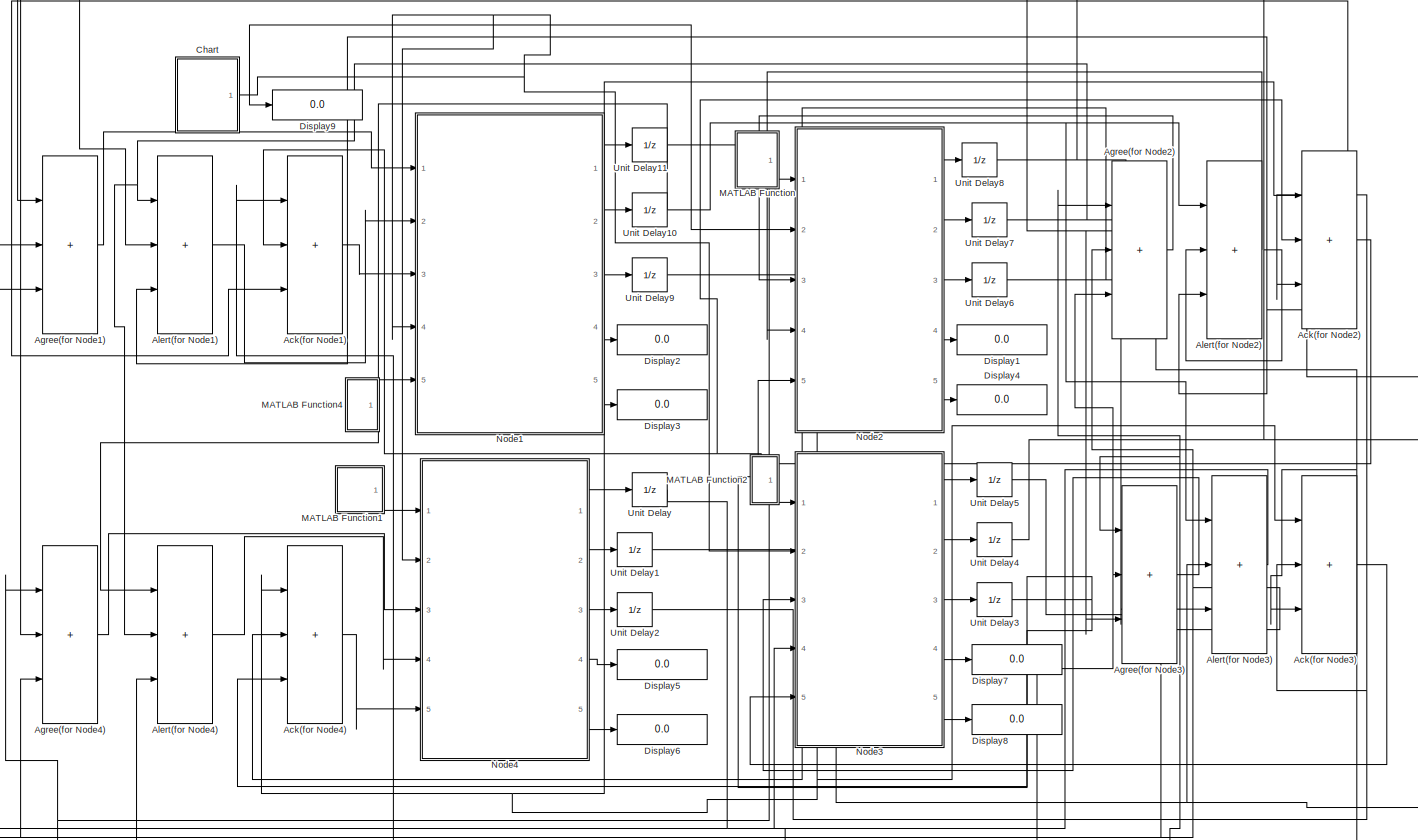
[diagram: root canvas - part 1/1, most of the canvas]
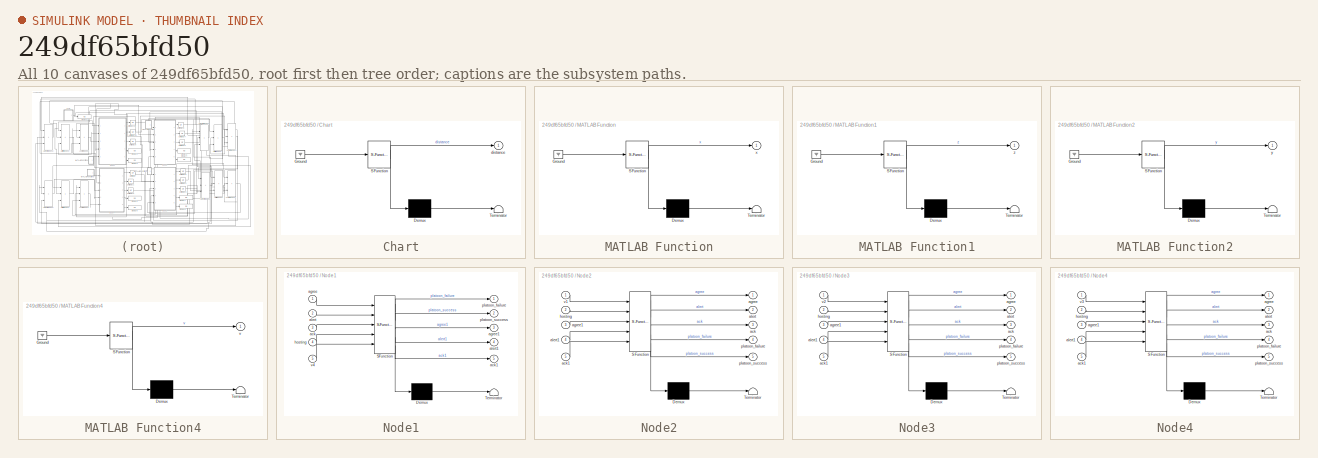
[diagram: thumbnail index - all 10 canvases of the model, root first then tree order]
MODEL slx_249df65bfd50
KIND model
CONFIG AbsTol = auto
CONFIG EnableMultiTasking = off
CONFIG FixedStep = auto
CONFIG MaxStep = auto
CONFIG MinStep = auto
CONFIG RelTol = 1e-3
CONFIG SampleTimeConstraint = Unconstrained
CONFIG SolverName = VariableStepAuto
CONFIG StartTime = 0.0
CONFIG StopTime = 10.0
BLOCK [Sum] Ack(for Node1)
  IconShape = rectangular
  Inputs = +++
  Ports = [3, 1]
BLOCK [Sum] Ack(for Node2)
  IconShape = rectangular
  Inputs = +++
  Ports = [3, 1]
BLOCK [Sum] Ack(for Node3)
  IconShape = rectangular
  Inputs = +++
  Ports = [3, 1]
BLOCK [Sum] Ack(for Node4)
  IconShape = rectangular
  Inputs = +++
  Ports = [3, 1]
BLOCK [Sum] Agree(for Node1)
  IconShape = rectangular
  Inputs = +++
  Ports = [3, 1]
BLOCK [Sum] Agree(for Node2)
  IconShape = rectangular
  Inputs = +++
  Ports = [3, 1]
BLOCK [Sum] Agree(for Node3)
  IconShape = rectangular
  Inputs = +++
  Ports = [3, 1]
BLOCK [Sum] Agree(for Node4)
  IconShape = rectangular
  Inputs = +++
  Ports = [3, 1]
BLOCK [Sum] Alert(for Node1)
  IconShape = rectangular
  Inputs = +++
  Ports = [3, 1]
BLOCK [Sum] Alert(for Node2)
  IconShape = rectangular
  Inputs = +++
  Ports = [3, 1]
BLOCK [Sum] Alert(for Node3)
  IconShape = rectangular
  Inputs = +++
  Ports = [3, 1]
BLOCK [Sum] Alert(for Node4)
  IconShape = rectangular
  Inputs = +++
  Ports = [3, 1]
BLOCK [SubSystem] Chart
  ErrorFcn = Stateflow.Translate.translate
  PermitHierarchicalResolution = ExplicitOnly
  Ports = [0, 1]
  RequestExecContextInheritance = off
  SFBlockType = Chart
  TreatAsAtomicUnit = on
BLOCK [Demux] Chart/ Demux 
  Outputs = 1
  Ports = [1, 1]
BLOCK [Ground] Chart/ Ground 
BLOCK [S-Function] Chart/ SFunction 
  EnableBusSupport = on
  FunctionName = sf_sfun
  PortCounts = [1 2]
  Ports = [1, 2]
  SFcnIsStateOwnerBlock = off
  SFunctionDeploymentMode = off
  Tag = Stateflow S-Function 10
BLOCK [Terminator] Chart/ Terminator 
BLOCK [Outport] Chart/distance
BLOCK [Display] Display1
  Decimation = 1
  Ports = [1]
BLOCK [Display] Display2
  Decimation = 1
  Ports = [1]
BLOCK [Display] Display3
  Decimation = 1
  Ports = [1]
BLOCK [Display] Display4
  Decimation = 1
  Ports = [1]
BLOCK [Display] Display5
  Decimation = 1
  Ports = [1]
BLOCK [Display] Display6
  Decimation = 1
  Ports = [1]
BLOCK [Display] Display7
  Decimation = 1
  Ports = [1]
BLOCK [Display] Display8
  Decimation = 1
  Ports = [1]
BLOCK [Display] Display9
  Decimation = 1
  Ports = [1]
BLOCK [SubSystem] MATLAB Function
  ErrorFcn = Stateflow.Translate.translate
  PermitHierarchicalResolution = ExplicitOnly
  Ports = [0, 1]
  RequestExecContextInheritance = off
  SFBlockType = MATLAB Function
  TreatAsAtomicUnit = on
BLOCK [Demux] MATLAB Function/ Demux 
  Outputs = 1
  Ports = [1, 1]
BLOCK [Ground] MATLAB Function/ Ground 
BLOCK [S-Function] MATLAB Function/ SFunction 
  EnableBusSupport = on
  FunctionName = sf_sfun
  PortCounts = [1 2]
  Ports = [1, 2]
  SFcnIsStateOwnerBlock = off
  SFunctionDeploymentMode = off
  Tag = Stateflow S-Function 5
BLOCK [Terminator] MATLAB Function/ Terminator 
BLOCK [Outport] MATLAB Function/x
BLOCK [SubSystem] MATLAB Function1
  ErrorFcn = Stateflow.Translate.translate
  PermitHierarchicalResolution = ExplicitOnly
  Ports = [0, 1]
  RequestExecContextInheritance = off
  SFBlockType = MATLAB Function
  TreatAsAtomicUnit = on
BLOCK [Demux] MATLAB Function1/ Demux 
  Outputs = 1
  Ports = [1, 1]
BLOCK [Ground] MATLAB Function1/ Ground 
BLOCK [S-Function] MATLAB Function1/ SFunction 
  EnableBusSupport = on
  FunctionName = sf_sfun
  PortCounts = [1 2]
  Ports = [1, 2]
  SFcnIsStateOwnerBlock = off
  SFunctionDeploymentMode = off
  Tag = Stateflow S-Function 6
BLOCK [Terminator] MATLAB Function1/ Terminator 
BLOCK [Outport] MATLAB Function1/z
BLOCK [SubSystem] MATLAB Function2
  ErrorFcn = Stateflow.Translate.translate
  PermitHierarchicalResolution = ExplicitOnly
  Ports = [0, 1]
  RequestExecContextInheritance = off
  SFBlockType = MATLAB Function
  TreatAsAtomicUnit = on
BLOCK [Demux] MATLAB Function2/ Demux 
  Outputs = 1
  Ports = [1, 1]
BLOCK [Ground] MATLAB Function2/ Ground 
BLOCK [S-Function] MATLAB Function2/ SFunction 
  EnableBusSupport = on
  FunctionName = sf_sfun
  PortCounts = [1 2]
  Ports = [1, 2]
  SFcnIsStateOwnerBlock = off
  SFunctionDeploymentMode = off
  Tag = Stateflow S-Function 7
BLOCK [Terminator] MATLAB Function2/ Terminator 
BLOCK [Outport] MATLAB Function2/y
BLOCK [SubSystem] MATLAB Function4
  ErrorFcn = Stateflow.Translate.translate
  PermitHierarchicalResolution = ExplicitOnly
  Ports = [0, 1]
  RequestExecContextInheritance = off
  SFBlockType = MATLAB Function
  TreatAsAtomicUnit = on
BLOCK [Demux] MATLAB Function4/ Demux 
  Outputs = 1
  Ports = [1, 1]
BLOCK [Ground] MATLAB Function4/ Ground 
BLOCK [S-Function] MATLAB Function4/ SFunction 
  EnableBusSupport = on
  FunctionName = sf_sfun
  PortCounts = [1 2]
  Ports = [1, 2]
  SFcnIsStateOwnerBlock = off
  SFunctionDeploymentMode = off
  Tag = Stateflow S-Function 9
BLOCK [Terminator] MATLAB Function4/ Terminator 
BLOCK [Outport] MATLAB Function4/v
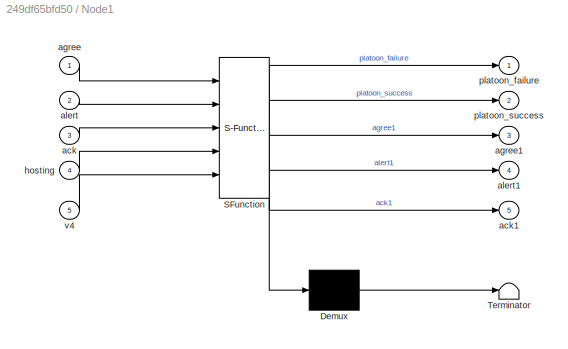
BLOCK [SubSystem] Node1
  ErrorFcn = Stateflow.Translate.translate
  PermitHierarchicalResolution = ExplicitOnly
  PortSchema = {"entries":[{"content":{"sides":[{"content":{"connectorIds":["In1","In2","In3","In4","In5"]},"type":"ConnectorPlacement.EquallySpacedRectSide","uuid":"734fbdd0-9501-4fb3-a80e-b93ab60da9cd"},{"content":{"connectorIds":["Out3","Out4","Out5","Out1","Out2"],"side":"RIGHT"},"type":"ConnectorPlacement.EquallySpacedRectSide","uuid":"5fc245a7-62da-4c1d-8651-4c21304ad71c"},{"content":{"connectorIds":[],"si...<+436ch>
  Ports = [5, 5]
  RequestExecContextInheritance = off
  SFBlockType = Chart
  TreatAsAtomicUnit = on
BLOCK [Demux] Node1/ Demux 
  Outputs = 1
  Ports = [1, 1]
BLOCK [S-Function] Node1/ SFunction 
  EnableBusSupport = on
  FunctionName = sf_sfun
  PortCounts = [5 6]
  Ports = [5, 6]
  SFcnIsStateOwnerBlock = off
  SFunctionDeploymentMode = off
  Tag = Stateflow S-Function 3
BLOCK [Terminator] Node1/ Terminator 
BLOCK [Inport] Node1/ack
  Port = 3
BLOCK [Outport] Node1/ack1
  Port = 5
BLOCK [Inport] Node1/agree
BLOCK [Outport] Node1/agree1
  Port = 3
BLOCK [Inport] Node1/alert
  Port = 2
BLOCK [Outport] Node1/alert1
  Port = 4
BLOCK [Inport] Node1/hosting
  Port = 4
BLOCK [Outport] Node1/platoon_failure
BLOCK [Outport] Node1/platoon_success
  Port = 2
BLOCK [Inport] Node1/v4
  Port = 5
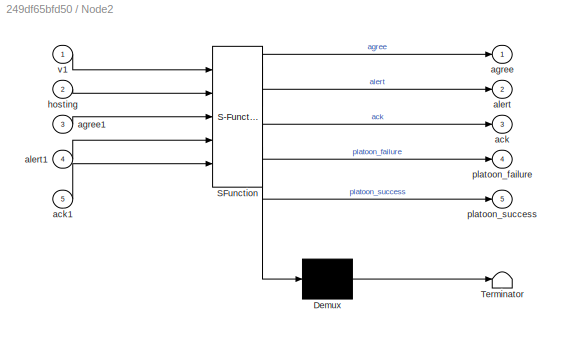
BLOCK [SubSystem] Node2
  ErrorFcn = Stateflow.Translate.translate
  PermitHierarchicalResolution = ExplicitOnly
  Ports = [5, 5]
  RequestExecContextInheritance = off
  SFBlockType = Chart
  TreatAsAtomicUnit = on
BLOCK [Demux] Node2/ Demux 
  Outputs = 1
  Ports = [1, 1]
BLOCK [S-Function] Node2/ SFunction 
  EnableBusSupport = on
  FunctionName = sf_sfun
  PortCounts = [5 6]
  Ports = [5, 6]
  SFcnIsStateOwnerBlock = off
  SFunctionDeploymentMode = off
  Tag = Stateflow S-Function 4
BLOCK [Terminator] Node2/ Terminator 
BLOCK [Outport] Node2/ack
  Port = 3
BLOCK [Inport] Node2/ack1
  Port = 5
BLOCK [Outport] Node2/agree
BLOCK [Inport] Node2/agree1
  Port = 3
BLOCK [Outport] Node2/alert
  Port = 2
BLOCK [Inport] Node2/alert1
  Port = 4
BLOCK [Inport] Node2/hosting
  Port = 2
BLOCK [Outport] Node2/platoon_failure
  Port = 4
BLOCK [Outport] Node2/platoon_success
  Port = 5
BLOCK [Inport] Node2/v1
BLOCK [SubSystem] Node3
  ErrorFcn = Stateflow.Translate.translate
  PermitHierarchicalResolution = ExplicitOnly
  Ports = [5, 5]
  RequestExecContextInheritance = off
  SFBlockType = Chart
  TreatAsAtomicUnit = on
BLOCK [Demux] Node3/ Demux 
  Outputs = 1
  Ports = [1, 1]
BLOCK [S-Function] Node3/ SFunction 
  EnableBusSupport = on
  FunctionName = sf_sfun
  PortCounts = [5 6]
  Ports = [5, 6]
  SFcnIsStateOwnerBlock = off
  SFunctionDeploymentMode = off
  Tag = Stateflow S-Function 1
BLOCK [Terminator] Node3/ Terminator 
BLOCK [Outport] Node3/ack
  Port = 3
BLOCK [Inport] Node3/ack1
  Port = 5
BLOCK [Outport] Node3/agree
BLOCK [Inport] Node3/agree1
  Port = 3
BLOCK [Outport] Node3/alert
  Port = 2
BLOCK [Inport] Node3/alert1
  Port = 4
BLOCK [Inport] Node3/hosting
  Port = 2
BLOCK [Outport] Node3/platoon_failure
  Port = 4
BLOCK [Outport] Node3/platoon_success
  Port = 5
BLOCK [Inport] Node3/v2
BLOCK [SubSystem] Node4
  ErrorFcn = Stateflow.Translate.translate
  PermitHierarchicalResolution = ExplicitOnly
  Ports = [5, 5]
  RequestExecContextInheritance = off
  SFBlockType = Chart
  TreatAsAtomicUnit = on
BLOCK [Demux] Node4/ Demux 
  Outputs = 1
  Ports = [1, 1]
BLOCK [S-Function] Node4/ SFunction 
  EnableBusSupport = on
  FunctionName = sf_sfun
  PortCounts = [5 6]
  Ports = [5, 6]
  SFcnIsStateOwnerBlock = off
  SFunctionDeploymentMode = off
  Tag = Stateflow S-Function 2
BLOCK [Terminator] Node4/ Terminator 
BLOCK [Outport] Node4/ack
  Port = 3
BLOCK [Inport] Node4/ack1
  Port = 5
BLOCK [Outport] Node4/agree
BLOCK [Inport] Node4/agree1
  Port = 3
BLOCK [Outport] Node4/alert
  Port = 2
BLOCK [Inport] Node4/alert1
  Port = 4
BLOCK [Inport] Node4/hosting
  Port = 2
BLOCK [Outport] Node4/platoon_failure
  Port = 4
BLOCK [Outport] Node4/platoon_success
  Port = 5
BLOCK [Inport] Node4/v3
BLOCK [UnitDelay] Unit Delay
  HasFrameUpgradeWarning = on
  SampleTime = -1
BLOCK [UnitDelay] Unit Delay1
  HasFrameUpgradeWarning = on
  SampleTime = -1
BLOCK [UnitDelay] Unit Delay10
  HasFrameUpgradeWarning = on
  SampleTime = -1
BLOCK [UnitDelay] Unit Delay11
  HasFrameUpgradeWarning = on
  SampleTime = -1
BLOCK [UnitDelay] Unit Delay2
  HasFrameUpgradeWarning = on
  SampleTime = -1
BLOCK [UnitDelay] Unit Delay3
  HasFrameUpgradeWarning = on
  SampleTime = -1
BLOCK [UnitDelay] Unit Delay4
  HasFrameUpgradeWarning = on
  SampleTime = -1
BLOCK [UnitDelay] Unit Delay5
  HasFrameUpgradeWarning = on
  SampleTime = -1
BLOCK [UnitDelay] Unit Delay6
  HasFrameUpgradeWarning = on
  SampleTime = -1
BLOCK [UnitDelay] Unit Delay7
  HasFrameUpgradeWarning = on
  SampleTime = -1
BLOCK [UnitDelay] Unit Delay8
  HasFrameUpgradeWarning = on
  SampleTime = -1
BLOCK [UnitDelay] Unit Delay9
  HasFrameUpgradeWarning = on
  SampleTime = -1
LINE Ack(for Node1):1 -> Node1:3
LINE Ack(for Node2):1 -> Node2:5
LINE Ack(for Node3):1 -> Node3:5
LINE Ack(for Node4):1 -> Node4:5
LINE Agree(for Node1):1 -> Node1:1
LINE Agree(for Node2):1 -> Node2:3
LINE Agree(for Node3):1 -> Node3:3
LINE Agree(for Node4):1 -> Node4:3
LINE Alert(for Node1):1 -> Node1:2
LINE Alert(for Node2):1 -> Node2:4
LINE Alert(for Node3):1 -> Node3:4
LINE Alert(for Node4):1 -> Node4:4
NET Chart:1 -> Display9:1, Node1:4, Node2:2, Node3:2, Node4:2
LINE MATLAB Function1:1 -> Node4:1
LINE MATLAB Function2:1 -> Node3:1
LINE MATLAB Function4:1 -> Node1:5
LINE MATLAB Function:1 -> Node2:1
LINE Node1:1 -> Display2:1
LINE Node1:2 -> Display3:1
LINE Node1:3 -> Unit Delay11:1
LINE Node1:4 -> Unit Delay10:1
LINE Node1:5 -> Unit Delay9:1
LINE Node2:1 -> Unit Delay8:1
LINE Node2:2 -> Unit Delay7:1
LINE Node2:3 -> Unit Delay6:1
LINE Node2:4 -> Display1:1
LINE Node2:5 -> Display4:1
LINE Node3:1 -> Unit Delay5:1
LINE Node3:2 -> Unit Delay4:1
LINE Node3:3 -> Unit Delay3:1
LINE Node3:4 -> Display7:1
LINE Node3:5 -> Display8:1
LINE Node4:1 -> Unit Delay:1
LINE Node4:2 -> Unit Delay1:1
LINE Node4:3 -> Unit Delay2:1
LINE Node4:4 -> Display5:1
LINE Node4:5 -> Display6:1
NET Unit Delay10:1 -> Alert(for Node2):1, Alert(for Node3):1, Alert(for Node4):1
NET Unit Delay11:1 -> Agree(for Node2):1, Agree(for Node3):1, Agree(for Node4):1
NET Unit Delay1:1 -> Alert(for Node1):3, Alert(for Node2):3, Alert(for Node3):2
NET Unit Delay2:1 -> Ack(for Node1):3, Ack(for Node2):3, Ack(for Node3):2
NET Unit Delay3:1 -> Ack(for Node1):2, Ack(for Node2):2, Ack(for Node4):3
NET Unit Delay4:1 -> Alert(for Node1):2, Alert(for Node2):2, Alert(for Node4):3
NET Unit Delay5:1 -> Agree(for Node1):2, Agree(for Node2):2, Agree(for Node4):3
NET Unit Delay6:1 -> Ack(for Node1):1, Ack(for Node3):3, Ack(for Node4):2
NET Unit Delay7:1 -> Alert(for Node1):1, Alert(for Node3):3, Alert(for Node4):2
NET Unit Delay8:1 -> Agree(for Node1):1, Agree(for Node3):3, Agree(for Node4):2
NET Unit Delay9:1 -> Ack(for Node2):1, Ack(for Node3):1, Ack(for Node4):1
NET Unit Delay:1 -> Agree(for Node1):3, Agree(for Node2):3, Agree(for Node3):2
note: NET lines group one-source signal fan-out (src -> all destinations, sorted); 1:1 wires keep LINE
CHART Node3 states=35 transitions=51
  STATE_LABEL 'Agend'
  STATE_LABEL 'Inactive'
  STATE_LABEL 'Ready\nentry:\nagree = 1;'
  STATE_LABEL 'Init\nentry:\ndead = false;'
  STATE_LABEL 'Wait'
  STATE_LABEL '[dead == false]'
  STATE_LABEL 'Active'
  STATE_LABEL 'Platoon\nentry:\nplatoon_function();'
  STATE_LABEL 'platoon_function'
  STATE_LABEL '[v2 > 50]'
  STATE_LABEL '{alert = 1;}'
  STATE_LABEL '{ack = 1;}'
  STATE_LABEL 'Inactive'
  STATE_LABEL 'Ready\nentry:\nagree = 1;'
  STATE_LABEL 'Init\nentry:\ndead = false;'
  STATE_LABEL 'Wait'
  STATE_LABEL '[dead == false]'
  STATE_LABEL 'Ready\nentry:\nagree = 1;'
  STATE_LABEL 'Init\nentry:\ndead = false;'
  STATE_LABEL 'Wait'
  STATE_LABEL 'Active'
  STATE_LABEL 'Platoon\nentry:\nplatoon_function();'
  STATE_LABEL 'platoon_function'
  STATE_LABEL '[v2 > 50]'
  STATE_LABEL '{alert = 1;}'
  STATE_LABEL '{ack = 1;}'
  STATE_LABEL 'Platoon\nentry:\nplatoon_function();'
  STATE_LABEL 'platoon_function'
  STATE_LABEL '[v2 > 50]'
  STATE_LABEL '{alert = 1;}'
  STATE_LABEL '{ack = 1;}'
  STATE_LABEL 'Host'
  STATE_LABEL 'Init\nentry:\nplatoon_success=0;\nplatoon_failure=0;'
  STATE_LABEL 'Commit\nentry:\n'
  STATE_LABEL 'PTC'
  STATE_LABEL 'Success\nentry:\nplatoon_failure = alert1;\nplatoon_success = ack1;'
  STATE_LABEL 'Fail\nentry:\nplatoon_failure = alert1;\nplatoon_success = ack1;'
  STATE_LABEL '[agree1 >= 2]'
  STATE_LABEL '[ack1 >= 2]'
  STATE_LABEL '[alert1 >= 2]'
CHART Node4 states=35 transitions=51
  STATE_LABEL 'Host'
  STATE_LABEL 'Init\nentry:\nplatoon_success=0;\nplatoon_failure=0;'
  STATE_LABEL 'Commit\n'
  STATE_LABEL 'PTC'
  STATE_LABEL 'Success\nentry:\nplatoon_failure = alert1;\nplatoon_success = ack1;'
  STATE_LABEL 'Fail\nentry:\nplatoon_failure = alert1;\nplatoon_success = ack1;'
  STATE_LABEL '[agree1 >= 2]'
  STATE_LABEL '[alert1 >= 2]'
  STATE_LABEL '[ack1 >= 2]'
  STATE_LABEL 'Init\nentry:\nplatoon_success=0;\nplatoon_failure=0;'
  STATE_LABEL 'Commit\n'
  STATE_LABEL 'PTC'
  STATE_LABEL 'Success\nentry:\nplatoon_failure = alert1;\nplatoon_success = ack1;'
  STATE_LABEL 'Fail\nentry:\nplatoon_failure = alert1;\nplatoon_success = ack1;'
  STATE_LABEL 'Agend'
  STATE_LABEL 'Inactive'
  STATE_LABEL 'Ready\nentry:\nagree = 1;\n'
  STATE_LABEL 'Init\nentry:\ndead = false;'
  STATE_LABEL 'Wait'
  STATE_LABEL '[dead == false]'
  STATE_LABEL 'Active'
  STATE_LABEL 'Platoon\nentry:\nplatoon_function();'
  STATE_LABEL 'platoon_function'
  STATE_LABEL '[v3 > 50]'
  STATE_LABEL '{alert = 1;}'
  STATE_LABEL '{ack = 1;}'
  STATE_LABEL 'Inactive'
  STATE_LABEL 'Ready\nentry:\nagree = 1;\n'
  STATE_LABEL 'Init\nentry:\ndead = false;'
  STATE_LABEL 'Wait'
  STATE_LABEL '[dead == false]'
  STATE_LABEL 'Ready\nentry:\nagree = 1;\n'
  STATE_LABEL 'Init\nentry:\ndead = false;'
  STATE_LABEL 'Wait'
  STATE_LABEL 'Active'
  STATE_LABEL 'Platoon\nentry:\nplatoon_function();'
  STATE_LABEL 'platoon_function'
  STATE_LABEL '[v3 > 50]'
  STATE_LABEL '{alert = 1;}'
  STATE_LABEL '{ack = 1;}'
CHART Node1 states=35 transitions=51
  STATE_LABEL 'agend'
  STATE_LABEL 'Inactive'
  STATE_LABEL 'Ready\nentry:\nagree1 = 1;'
  STATE_LABEL 'Init\nentry:\ndead = false;'
  STATE_LABEL 'Wait'
  STATE_LABEL '[dead == false]'
  STATE_LABEL 'Active'
  STATE_LABEL 'Platoon\nentry:\nplatoon_function();'
  STATE_LABEL 'platoon_function'
  STATE_LABEL '[v4 > 50]'
  STATE_LABEL '{alert1 = 1;}'
  STATE_LABEL '{ack1 = 1;}'
  STATE_LABEL 'Inactive'
  STATE_LABEL 'Ready\nentry:\nagree1 = 1;'
  STATE_LABEL 'Init\nentry:\ndead = false;'
  STATE_LABEL 'Wait'
  STATE_LABEL '[dead == false]'
  STATE_LABEL 'Ready\nentry:\nagree1 = 1;'
  STATE_LABEL 'Init\nentry:\ndead = false;'
  STATE_LABEL 'Wait'
  STATE_LABEL 'Active'
  STATE_LABEL 'Platoon\nentry:\nplatoon_function();'
  STATE_LABEL 'platoon_function'
  STATE_LABEL '[v4 > 50]'
  STATE_LABEL '{alert1 = 1;}'
  STATE_LABEL '{ack1 = 1;}'
  STATE_LABEL 'Platoon\nentry:\nplatoon_function();'
  STATE_LABEL 'platoon_function'
  STATE_LABEL '[v4 > 50]'
  STATE_LABEL '{alert1 = 1;}'
  STATE_LABEL '{ack1 = 1;}'
  STATE_LABEL 'Host'
  STATE_LABEL 'Init\nentry:\nplatoon_success=0;\nplatoon_failure=0;'
  STATE_LABEL 'Commit\n\n'
  STATE_LABEL 'PTC\n\n'
  STATE_LABEL 'Success\nentry:\nplatoon_success = ack;\nplatoon_failure = alert;'
  STATE_LABEL 'Fail\nentry:\nplatoon_success = ack;\nplatoon_failure = alert;'
  STATE_LABEL '[agree >= 2]'
  STATE_LABEL '[alert >= 2]'
  STATE_LABEL '[ack >= 2]'
CHART Node2 states=35 transitions=51
  STATE_LABEL 'Host'
  STATE_LABEL 'Init\nentry:\nplatoon_success=0;\nplatoon_failure=0;'
  STATE_LABEL 'Commit\n'
  STATE_LABEL 'PTC'
  STATE_LABEL 'Success\nentry:\nplatoon_failure = alert1;\nplatoon_success = ack1;'
  STATE_LABEL 'Fail\nentry:\nplatoon_failure = alert1;\nplatoon_success = ack1;'
  STATE_LABEL '[agree1 >= 2]'
  STATE_LABEL '[ack1 >= 2]'
  STATE_LABEL '[alert1 >= 2]'
  STATE_LABEL 'Init\nentry:\nplatoon_success=0;\nplatoon_failure=0;'
  STATE_LABEL 'Commit\n'
  STATE_LABEL 'PTC'
  STATE_LABEL 'Success\nentry:\nplatoon_failure = alert1;\nplatoon_success = ack1;'
  STATE_LABEL 'Fail\nentry:\nplatoon_failure = alert1;\nplatoon_success = ack1;'
  STATE_LABEL 'Agend'
  STATE_LABEL 'Inactive'
  STATE_LABEL 'Ready\nentry:\nagree = 1;'
  STATE_LABEL 'Init\nentry:\ndead = false;'
  STATE_LABEL 'Wait'
  STATE_LABEL '[dead == false]'
  STATE_LABEL 'Active'
  STATE_LABEL 'Platoon\nentry:\nplatoon_function();'
  STATE_LABEL 'platoon_function'
  STATE_LABEL '[v1 > 50]'
  STATE_LABEL '{alert = 1;}'
  STATE_LABEL '{ack = 1;}'
  STATE_LABEL 'Inactive'
  STATE_LABEL 'Ready\nentry:\nagree = 1;'
  STATE_LABEL 'Init\nentry:\ndead = false;'
  STATE_LABEL 'Wait'
  STATE_LABEL '[dead == false]'
  STATE_LABEL 'Ready\nentry:\nagree = 1;'
  STATE_LABEL 'Init\nentry:\ndead = false;'
  STATE_LABEL 'Wait'
  STATE_LABEL 'Active'
  STATE_LABEL 'Platoon\nentry:\nplatoon_function();'
  STATE_LABEL 'platoon_function'
  STATE_LABEL '[v1 > 50]'
  STATE_LABEL '{alert = 1;}'
  STATE_LABEL '{ack = 1;}'
CHART MATLAB Function states=1 transitions=1
  STATE_LABEL 'eML_blk_kernel()'
  STATE_LABEL "SCRIPT:\n\nfunction x = v1()\n\n% a = 30;\n% b= 100;\n% \n% x = round((a + (b-a) .* rand(1,1)));\n% \n% \n%  end\ncoder.extrinsic('rand','rng');\nx = 0;\n\npersistent atTime0\nif isempty(atTime0)\n    rng('shuffle');\n    atTime0 = false;\nend\n\nx = round(rand * 100);"
CHART MATLAB Function1 states=1 transitions=1
  STATE_LABEL 'eML_blk_kernel()'
  STATE_LABEL "SCRIPT:\nfunction z = v3()\n\n% a = 25;\n% b= 100;\n% \n% z = round((a + (b-a) .* rand(1,1)));\n% \n% end\n\ncoder.extrinsic('rand','rng');\nz = 0;\n\npersistent atTime0\nif isempty(atTime0)\n    rng('shuffle');\n    atTime0 = false;\nend\n\nz = round(rand * 100);\n"
CHART MATLAB Function2 states=1 transitions=1
  STATE_LABEL 'eML_blk_kernel()'
  STATE_LABEL "SCRIPT:\nfunction y = v2()\n\ncoder.extrinsic('rand','rng');\ny = 0;\n\npersistent atTime0\nif isempty(atTime0)\n    rng('shuffle');\n    atTime0 = false;\nend\n\ny = round(rand * 100);\n"
CHART MATLAB Function4 states=1 transitions=1
  STATE_LABEL 'eML_blk_kernel()'
  STATE_LABEL "SCRIPT:\nfunction v = v4()\n\ncoder.extrinsic('rand','rng');\nv = 0;\n\npersistent atTime0\nif isempty(atTime0)\n    rng('shuffle');\n    atTime0 = false;\nend\n\nv = round(rand * 100);\n"
CHART Chart states=3 transitions=15
  STATE_LABEL 'Hosting_output\nentry:\nv9();\ndistance = v9;\n'
  STATE_LABEL 'selct_host_name(out)'
  STATE_LABEL '% Select Host Name'
  STATE_LABEL '[out > 0 && out < 24]'
  STATE_LABEL '{Host = 1;}'
  STATE_LABEL '[out >= 25 && out <= 49]'
  STATE_LABEL '{Host = 2;}'
  STATE_LABEL '[out >= 50 && out <= 74]'
  STATE_LABEL '{Host = 4;}'
  STATE_LABEL '{Host = 3;}'
  STATE_LABEL 'x = v9'
  STATE_LABEL "SCRIPT:\nfunction x = v9()\n\n% a = 30;\n% b= 100;\n% \n% x = round((a + (b-a) .* rand(1,1)));\n% \n% \n%  end\ncoder.extrinsic('rand','rng');\nx = 0;\n\npersistent atTime0\nif isempty(atTime0)\n    rng('shuffle');\n    atTime0 = false;\nend\n\nx = round(rand * 100);\n \n"
  STATE_LABEL 'selct_host_name(out)'
  STATE_LABEL '% Select Host Name'
  STATE_LABEL '[out > 0 && out < 24]'
  STATE_LABEL '{Host = 1;}'
  STATE_LABEL '[out >= 25 && out <= 49]'
  STATE_LABEL '{Host = 2;}'
  STATE_LABEL '[out >= 50 && out <= 74]'
  STATE_LABEL '{Host = 4;}'
  STATE_LABEL '{Host = 3;}'
  STATE_LABEL 'x = v9'
  STATE_LABEL "SCRIPT:\nfunction x = v9()\n\n% a = 30;\n% b= 100;\n% \n% x = round((a + (b-a) .* rand(1,1)));\n% \n% \n%  end\ncoder.extrinsic('rand','rng');\nx = 0;\n\npersistent atTime0\nif isempty(atTime0)\n    rng('shuffle');\n    atTime0 = false;\nend\n\nx = round(rand * 100);\n \n"
CHART  states=0 transitions=0
CHART  states=0 transitions=0
CHART  states=0 transitions=0
CHART  states=0 transitions=0
CHART  states=0 transitions=0
CHART  states=0 transitions=0
CHART  states=0 transitions=0
CHART  states=0 transitions=0
CHART  states=0 transitions=0
